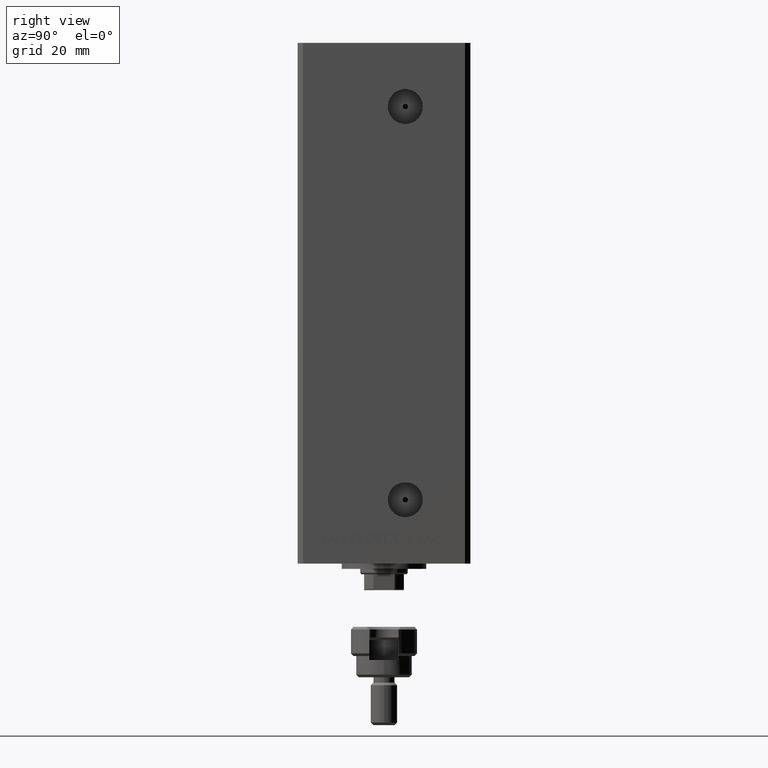
[diagram: clean part render]
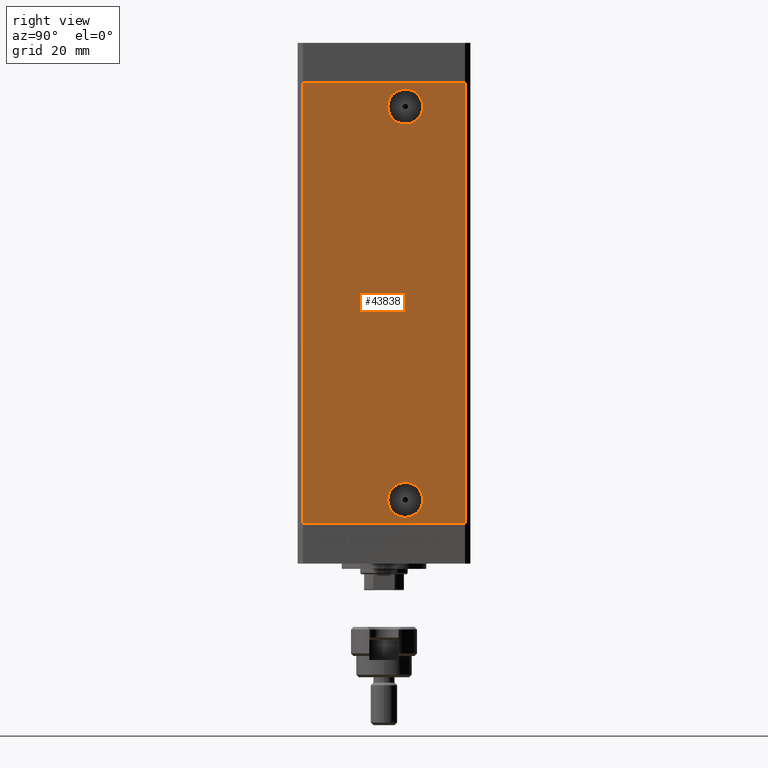
[diagram: same view with one face highlighted and labeled with its STEP entity id]
A machine part, right view. The second image highlights one B-rep face of the part: STEP entity #43838.
In plain terms, the highlighted planar face has unit normal (1, -0, 0).
Its self-contained STEP definition (entity closure, byte-faithful):
#1001 = CARTESIAN_POINT ( 'NONE',  ( 37.50000000000000000, 7.999999999999991118, 8.999999999999994671 ) ) ;
#1058 = CIRCLE ( 'NONE', #3501, 6.580000000000014282 ) ;
#1522 = VERTEX_POINT ( 'NONE', #9316 ) ;
#1787 = AXIS2_PLACEMENT_3D ( 'NONE', #1001, #24228, #4828 ) ;
#2907 = DIRECTION ( 'NONE',  ( -0.000000000000000000, -0.000000000000000000, -1.000000000000000000 ) ) ;
#3501 = AXIS2_PLACEMENT_3D ( 'NONE', #43370, #40550, #28576 ) ;
#3671 = DIRECTION ( 'NONE',  ( 1.000000000000000000, -2.275047181608927644E-16, 0.000000000000000000 ) ) ;
#4828 = DIRECTION ( 'NONE',  ( 0.000000000000000000, 1.000000000000000000, 0.000000000000000000 ) ) ;
#6067 = CARTESIAN_POINT ( 'NONE',  ( 37.50000000000000711, 30.50000000000000000, 166.0000000000000000 ) ) ;
#6750 = FACE_OUTER_BOUND ( 'NONE', #7842, .T. ) ;
#7842 = EDGE_LOOP ( 'NONE', ( #26569, #47655, #16774, #8781 ) ) ;
#7937 = CARTESIAN_POINT ( 'NONE',  ( 37.49999999999999289, -30.50000000000000000, 166.0000000000000000 ) ) ;
#8781 = ORIENTED_EDGE ( 'NONE', *, *, #45694, .T. ) ;
#9017 = VECTOR ( 'NONE', #2907, 1000.000000000000000 ) ;
#9053 = AXIS2_PLACEMENT_3D ( 'NONE', #49627, #14660, #28169 ) ;
#9162 = CIRCLE ( 'NONE', #45015, 6.580000000000006288 ) ;
#9175 = VERTEX_POINT ( 'NONE', #40012 ) ;
#9316 = CARTESIAN_POINT ( 'NONE',  ( 37.50000000000000000, 14.57999999999999829, 8.999999999999994671 ) ) ;
#9595 = EDGE_CURVE ( 'NONE', #9175, #35218, #34800, .T. ) ;
#10490 = EDGE_CURVE ( 'NONE', #47777, #40500, #35950, .T. ) ;
#12195 = CARTESIAN_POINT ( 'NONE',  ( 37.49999999999999289, -30.50000000000000000, 0.000000000000000000 ) ) ;
#13769 = EDGE_CURVE ( 'NONE', #9175, #18338, #29312, .T. ) ;
#14660 = DIRECTION ( 'NONE',  ( 1.000000000000000000, -2.275047181608927644E-16, 0.000000000000000000 ) ) ;
#16417 = EDGE_CURVE ( 'NONE', #30005, #1522, #17263, .T. ) ;
#16774 = ORIENTED_EDGE ( 'NONE', *, *, #13769, .T. ) ;
#17263 = CIRCLE ( 'NONE', #1787, 6.580000000000006288 ) ;
#17527 = VECTOR ( 'NONE', #43856, 1000.000000000000000 ) ;
#17718 = LINE ( 'NONE', #28473, #33070 ) ;
#18220 = CARTESIAN_POINT ( 'NONE',  ( 37.50000000000000000, 7.999999999999991118, 8.999999999999994671 ) ) ;
#18338 = VERTEX_POINT ( 'NONE', #7937 ) ;
#18741 = PLANE ( 'NONE',  #28075 ) ;
#19032 = EDGE_LOOP ( 'NONE', ( #46243, #45515 ) ) ;
#20084 = CARTESIAN_POINT ( 'NONE',  ( 37.50000000000000000, 1.419999999999975948, 157.0000000000000000 ) ) ;
#20343 = EDGE_CURVE ( 'NONE', #40500, #47777, #1058, .T. ) ;
#21411 = VECTOR ( 'NONE', #37975, 1000.000000000000000 ) ;
#22302 = EDGE_CURVE ( 'NONE', #1522, #30005, #9162, .T. ) ;
#22832 = FACE_BOUND ( 'NONE', #19032, .T. ) ;
#24228 = DIRECTION ( 'NONE',  ( 1.000000000000000000, -2.275047181608927644E-16, 0.000000000000000000 ) ) ;
#26569 = ORIENTED_EDGE ( 'NONE', *, *, #30045, .F. ) ;
#26636 = ORIENTED_EDGE ( 'NONE', *, *, #10490, .F. ) ;
#28075 = AXIS2_PLACEMENT_3D ( 'NONE', #33553, #38400, #30233 ) ;
#28169 = DIRECTION ( 'NONE',  ( 0.000000000000000000, 1.000000000000000000, 0.000000000000000000 ) ) ;
#28473 = CARTESIAN_POINT ( 'NONE',  ( 37.50000000000000711, 30.50000000000000000, 0.000000000000000000 ) ) ;
#28576 = DIRECTION ( 'NONE',  ( 0.000000000000000000, 1.000000000000000000, 0.000000000000000000 ) ) ;
#28885 = VERTEX_POINT ( 'NONE', #12195 ) ;
#29312 = LINE ( 'NONE', #6067, #21411 ) ;
#29731 = FACE_BOUND ( 'NONE', #36661, .T. ) ;
#30005 = VERTEX_POINT ( 'NONE', #36626 ) ;
#30045 = EDGE_CURVE ( 'NONE', #35218, #28885, #17718, .T. ) ;
#30233 = DIRECTION ( 'NONE',  ( 2.275047181608927644E-16, 1.000000000000000000, 0.000000000000000000 ) ) ;
#33070 = VECTOR ( 'NONE', #44019, 1000.000000000000000 ) ;
#33553 = CARTESIAN_POINT ( 'NONE',  ( 37.50000000000000711, 30.50000000000000000, 166.0000000000000000 ) ) ;
#34549 = CARTESIAN_POINT ( 'NONE',  ( 37.50000000000000711, 30.50000000000000000, 166.0000000000000000 ) ) ;
#34800 = LINE ( 'NONE', #34549, #9017 ) ;
#35218 = VERTEX_POINT ( 'NONE', #42952 ) ;
#35950 = CIRCLE ( 'NONE', #9053, 6.580000000000014282 ) ;
#36626 = CARTESIAN_POINT ( 'NONE',  ( 37.50000000000000000, 1.419999999999985496, 8.999999999999994671 ) ) ;
#36661 = EDGE_LOOP ( 'NONE', ( #39364, #26636 ) ) ;
#37975 = DIRECTION ( 'NONE',  ( -2.275047181608927644E-16, -1.000000000000000000, 0.000000000000000000 ) ) ;
#38400 = DIRECTION ( 'NONE',  ( 1.000000000000000000, -2.275047181608927644E-16, 0.000000000000000000 ) ) ;
#38639 = DIRECTION ( 'NONE',  ( 0.000000000000000000, 1.000000000000000000, 0.000000000000000000 ) ) ;
#39364 = ORIENTED_EDGE ( 'NONE', *, *, #20343, .F. ) ;
#40012 = CARTESIAN_POINT ( 'NONE',  ( 37.50000000000000711, 30.50000000000000000, 166.0000000000000000 ) ) ;
#40500 = VERTEX_POINT ( 'NONE', #47040 ) ;
#40550 = DIRECTION ( 'NONE',  ( 1.000000000000000000, -2.275047181608927644E-16, 0.000000000000000000 ) ) ;
#40777 = LINE ( 'NONE', #47445, #17527 ) ;
#42952 = CARTESIAN_POINT ( 'NONE',  ( 37.50000000000000711, 30.50000000000000000, 0.000000000000000000 ) ) ;
#43370 = CARTESIAN_POINT ( 'NONE',  ( 37.50000000000000000, 7.999999999999991118, 157.0000000000000000 ) ) ;
#43838 = ADVANCED_FACE ( 'NONE', ( #22832, #29731, #6750 ), #18741, .T. ) ;
#43856 = DIRECTION ( 'NONE',  ( -0.000000000000000000, -0.000000000000000000, -1.000000000000000000 ) ) ;
#44019 = DIRECTION ( 'NONE',  ( -2.275047181608927644E-16, -1.000000000000000000, 0.000000000000000000 ) ) ;
#45015 = AXIS2_PLACEMENT_3D ( 'NONE', #18220, #3671, #38639 ) ;
#45515 = ORIENTED_EDGE ( 'NONE', *, *, #16417, .F. ) ;
#45694 = EDGE_CURVE ( 'NONE', #18338, #28885, #40777, .T. ) ;
#46243 = ORIENTED_EDGE ( 'NONE', *, *, #22302, .F. ) ;
#47040 = CARTESIAN_POINT ( 'NONE',  ( 37.50000000000000000, 14.58000000000000540, 157.0000000000000000 ) ) ;
#47445 = CARTESIAN_POINT ( 'NONE',  ( 37.49999999999999289, -30.50000000000000000, 166.0000000000000000 ) ) ;
#47655 = ORIENTED_EDGE ( 'NONE', *, *, #9595, .F. ) ;
#47777 = VERTEX_POINT ( 'NONE', #20084 ) ;
#49627 = CARTESIAN_POINT ( 'NONE',  ( 37.50000000000000000, 7.999999999999991118, 157.0000000000000000 ) ) ;